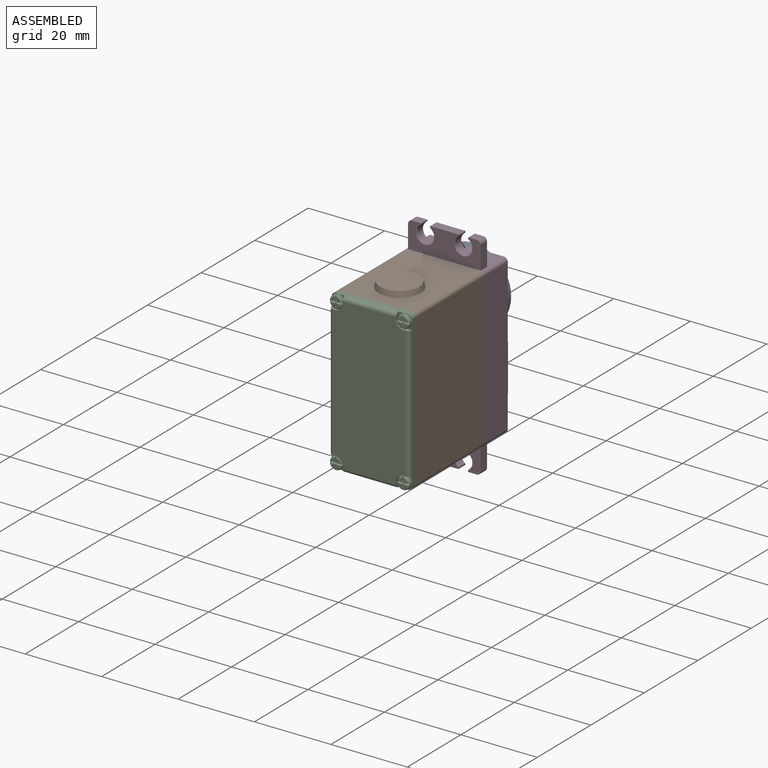
[diagram: assembled view]
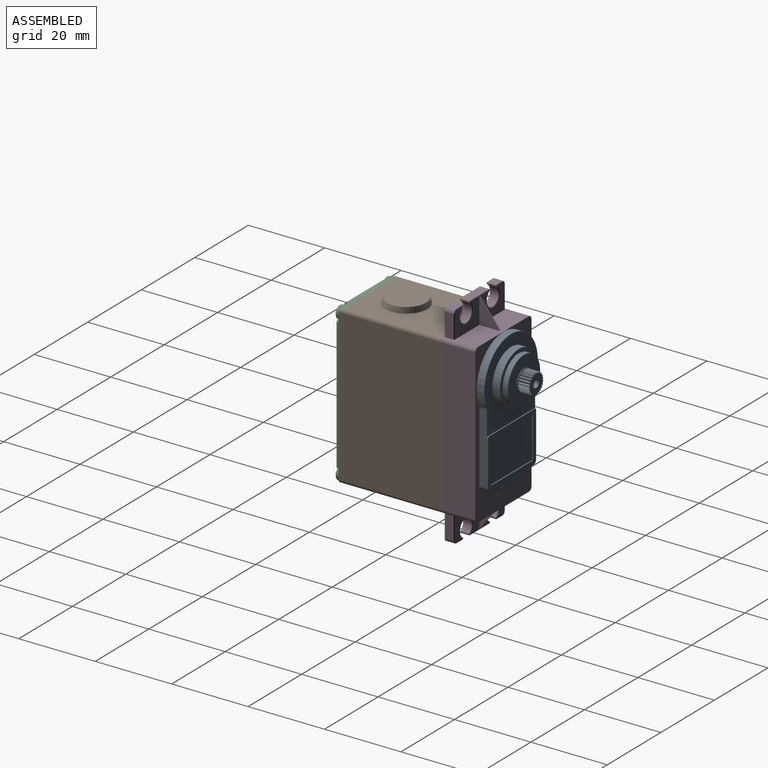
[diagram: assembled view, second angle]
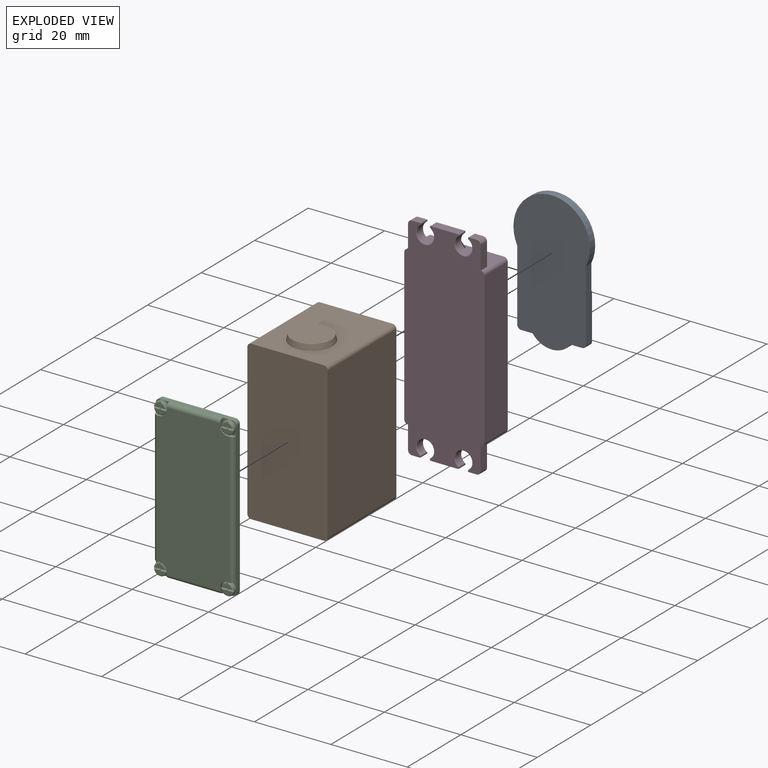
[diagram: exploded view]
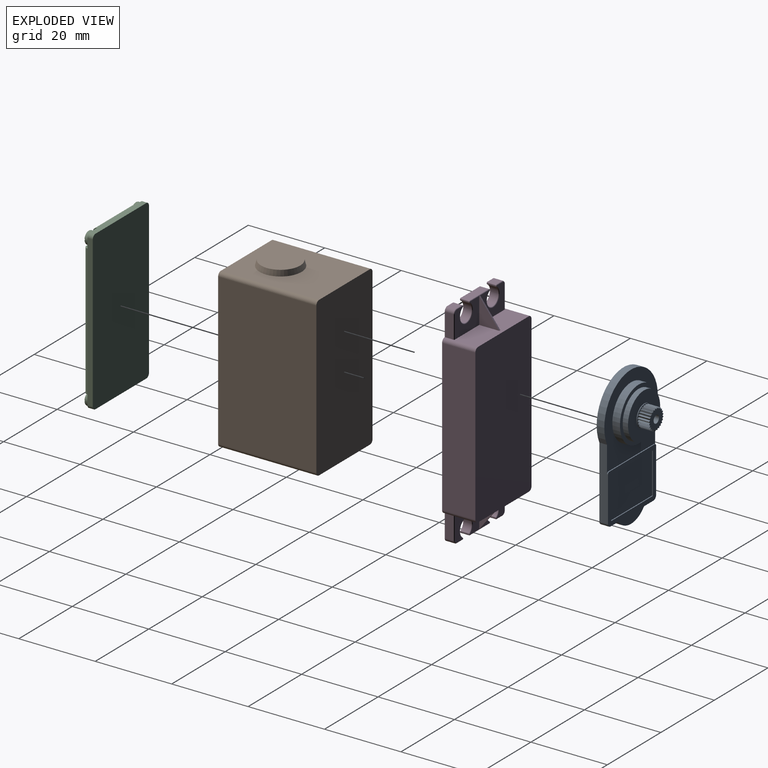
[diagram: exploded view, second angle]
ASSEMBLY  parts=4 mates=3
PART A: 76 faces, bbox 20x8.6x36.5 mm
  f0: plane 12x12mm, normal (0,1,0), area 87.6mm2, adj f22,f23
  f1: plane 14x14mm, normal (0,1,0), area 40.8mm2, adj f21,f22
  f2: plane 21.36x20mm, normal (0,1,0), area 204.6mm2, adj f3,f4,f5,f12,f13,f14,f21
  f3: plane 18.64x2.25mm, normal (-1,0,0), area 40.2mm2, adj f2,f4,f9,f11,f13,f15
  f4: cylinder r=10mm len=20mm, axis (0,-1,0), area 80.9mm2, adj f2,f3,f5,f11
  f5: plane 18.64x2.25mm, normal (1,0,0), area 40.2mm2, adj f2,f4,f6,f11,f12,f15
  f6: cylinder r=1mm len=2.25mm, axis (0,-1,0), area 3.5mm2, adj f5,f8,f11,f15
  f7: cylinder r=6.25mm len=10mm, axis (0,-1,0), area 23.2mm2, adj f8,f10,f11
  f8: plane 16x2.25mm, normal (0,0,-1), area 16mm2, adj f6,f7,f9,f10,f11,f15
  f9: cylinder r=1mm len=2.25mm, axis (0,-1,0), area 3.5mm2, adj f3,f8,f11,f15
  f10: plane 10x2.5mm, normal (0,1,0), area 17.5mm2, adj f7,f8
  f11: plane 36.5x20mm, normal (0,-1,0), area 612mm2, adj f3,f4,f5,f6,f7,f8,f9
  f12: cylinder r=0.5mm len=0.5mm, axis (0,-1,0), area 0.2mm2, adj f2,f5,f14,f15
  f13: cylinder r=0.5mm len=0.5mm, axis (0,-1,0), area 0.2mm2, adj f2,f3,f14,f15
  f14: plane 17x0.25mm, normal (0,0,1), area 4.2mm2, adj f2,f12,f13,f15
  f15: plane 18x13.14mm, normal (0,1,0), area 68.4mm2, adj f3,f5,f6,f8,f9,f12,f13,f14
  f16: plane 10.74x0.25mm, normal (-1,0,0), area 2.7mm2, adj f15,f17,f19,f20
  f17: plane 15.6x0.25mm, normal (0,0,-1), area 3.9mm2, adj f15,f16,f18,f20
  f18: plane 10.74x0.25mm, normal (1,0,0), area 2.7mm2, adj f15,f17,f19,f20
  f19: plane 15.6x0.25mm, normal (0,0,1), area 3.9mm2, adj f15,f16,f18,f20
  f20: plane 15.6x10.74mm, normal (0,1,0), area 167.5mm2, adj f16,f17,f18,f19
  f21: cylinder r=7mm len=14mm, axis (0,-1,0), area 88mm2, adj f1,f2
  f22: cylinder r=6mm len=12mm, axis (0,-1,0), area 52.8mm2, adj f0,f1
  f23: cylinder r=2.85mm len=5.7mm, axis (0,-1,0), area 3.6mm2, adj f0,f24
  f24: plane 5.7x5.7mm, normal (0,1,0), area 5.4mm2, adj f23,f25,f26,f27,f28,f29,f30,f31
  f25: plane 3x0.44mm, normal (-0.87,0,-0.5), area 1.5mm2, adj f24,f26,f72,f73
  f26: plane 3x0.44mm, normal (0.5,0,-0.87), area 1.5mm2, adj f24,f25,f27,f73
  f27: plane 3x0.49mm, normal (-0.97,0,-0.26), area 1.5mm2, adj f24,f26,f28,f73
  f28: plane 3x0.49mm, normal (0.26,0,-0.97), area 1.5mm2, adj f24,f27,f29,f73
  f29: plane 3x0.5mm, normal (-1,0,0), area 1.5mm2, adj f24,f28,f30,f73
  f30: plane 3x0.5mm, normal (0,0,-1), area 1.5mm2, adj f24,f29,f31,f73
  f31: plane 3x0.49mm, normal (-0.97,0,0.26), area 1.5mm2, adj f24,f30,f32,f73
  f32: plane 3x0.49mm, normal (-0.26,0,-0.97), area 1.5mm2, adj f24,f31,f33,f73
  f33: plane 3x0.44mm, normal (-0.87,0,0.5), area 1.5mm2, adj f24,f32,f34,f73
  f34: plane 3x0.44mm, normal (-0.5,0,-0.87), area 1.5mm2, adj f24,f33,f35,f73
  f35: plane 3x0.36mm, normal (-0.71,0,0.71), area 1.5mm2, adj f24,f34,f36,f73
  f36: plane 3x0.36mm, normal (-0.71,0,-0.71), area 1.5mm2, adj f24,f35,f37,f73
  f37: plane 3x0.44mm, normal (-0.5,0,0.87), area 1.5mm2, adj f24,f36,f38,f73
  f38: plane 3x0.44mm, normal (-0.87,0,-0.5), area 1.5mm2, adj f24,f37,f39,f73
  f39: plane 3x0.49mm, normal (-0.26,0,0.97), area 1.5mm2, adj f24,f38,f40,f73
  f40: plane 3x0.49mm, normal (-0.97,0,-0.26), area 1.5mm2, adj f24,f39,f41,f73
  f41: plane 3x0.5mm, normal (0,0,1), area 1.5mm2, adj f24,f40,f42,f73
  f42: plane 3x0.5mm, normal (-1,0,0), area 1.5mm2, adj f24,f41,f43,f73
  f43: plane 3x0.49mm, normal (0.26,0,0.97), area 1.5mm2, adj f24,f42,f44,f73
  f44: plane 3x0.49mm, normal (-0.97,0,0.26), area 1.5mm2, adj f24,f43,f45,f73
  f45: plane 3x0.44mm, normal (0.5,0,0.87), area 1.5mm2, adj f24,f44,f46,f73
  f46: plane 3x0.44mm, normal (-0.87,0,0.5), area 1.5mm2, adj f24,f45,f47,f73
  f47: plane 3x0.36mm, normal (0.71,0,0.71), area 1.5mm2, adj f24,f46,f48,f73
  f48: plane 3x0.36mm, normal (-0.71,0,0.71), area 1.5mm2, adj f24,f47,f49,f73
  f49: plane 3x0.44mm, normal (0.87,0,0.5), area 1.5mm2, adj f24,f48,f50,f73
  f50: plane 3x0.44mm, normal (-0.5,0,0.87), area 1.5mm2, adj f24,f49,f51,f73
  f51: plane 3x0.49mm, normal (0.97,0,0.26), area 1.5mm2, adj f24,f50,f52,f73
  f52: plane 3x0.49mm, normal (-0.26,0,0.97), area 1.5mm2, adj f24,f51,f53,f73
  f53: plane 3x0.5mm, normal (1,0,0), area 1.5mm2, adj f24,f52,f54,f73
  f54: plane 3x0.5mm, normal (0,0,1), area 1.5mm2, adj f24,f53,f55,f73
  f55: plane 3x0.49mm, normal (0.97,0,-0.26), area 1.5mm2, adj f24,f54,f56,f73
  f56: plane 3x0.49mm, normal (0.26,0,0.97), area 1.5mm2, adj f24,f55,f57,f73
  f57: plane 3x0.44mm, normal (0.87,0,-0.5), area 1.5mm2, adj f24,f56,f58,f73
  f58: plane 3x0.44mm, normal (0.5,0,0.87), area 1.5mm2, adj f24,f57,f59,f73
  f59: plane 3x0.36mm, normal (0.71,0,-0.71), area 1.5mm2, adj f24,f58,f60,f73
  f60: plane 3x0.36mm, normal (0.71,0,0.71), area 1.5mm2, adj f24,f59,f61,f73
  f61: plane 3x0.44mm, normal (0.5,0,-0.87), area 1.5mm2, adj f24,f60,f62,f73
  f62: plane 3x0.44mm, normal (0.87,0,0.5), area 1.5mm2, adj f24,f61,f63,f73
  f63: plane 3x0.49mm, normal (0.26,0,-0.97), area 1.5mm2, adj f24,f62,f64,f73
  f64: plane 3x0.49mm, normal (0.97,0,0.26), area 1.5mm2, adj f24,f63,f65,f73
  f65: plane 3x0.5mm, normal (0,0,-1), area 1.5mm2, adj f24,f64,f66,f73
  f66: plane 3x0.5mm, normal (1,0,0), area 1.5mm2, adj f24,f65,f67,f73
  f67: plane 3x0.49mm, normal (-0.26,0,-0.97), area 1.5mm2, adj f24,f66,f68,f73
  f68: plane 3x0.49mm, normal (0.97,0,-0.26), area 1.5mm2, adj f24,f67,f69,f73
  f69: plane 3x0.44mm, normal (-0.5,0,-0.87), area 1.5mm2, adj f24,f68,f70,f73
  f70: plane 3x0.44mm, normal (0.87,0,-0.5), area 1.5mm2, adj f24,f69,f71,f73
  f71: plane 3x0.36mm, normal (-0.71,0,-0.71), area 1.5mm2, adj f24,f70,f72,f73
  f72: plane 3x0.36mm, normal (0.71,0,-0.71), area 1.5mm2, adj f24,f25,f71,f73
  f73: plane 5.41x5.41mm, normal (0,1,0), area 17mm2, adj f25,f26,f27,f28,f29,f30,f31,f32
  f74: cylinder r=1mm len=3mm, axis (0,1,0), area 18.8mm2, adj f73,f75
  f75: plane 2x2mm, normal (0,1,0), area 3.1mm2, adj f74
PART B: 12 faces, bbox 21x25.7x42.9 mm
  f0: plane 25.7x19mm, normal (0,0,1), area 393.3mm2, adj f4,f5,f8,f9,f10
  f1: plane 39.5x25.7mm, normal (-1,0,0), area 1015.1mm2, adj f4,f5,f6,f8
  f2: plane 39.5x25.7mm, normal (1,0,0), area 1015.1mm2, adj f4,f5,f7,f9
  f3: plane 25.7x19mm, normal (0,0,-1), area 488.3mm2, adj f4,f5,f6,f7
  f4: plane 41.5x21mm, normal (0,1,0), area 870.6mm2, adj f0,f1,f2,f3,f6,f7,f8,f9
  f5: plane 41.5x21mm, normal (0,-1,0), area 870.6mm2, adj f0,f1,f2,f3,f6,f7,f8,f9
  f6: cylinder r=1mm len=25.7mm, axis (0,-1,0), area 40.4mm2, adj f1,f3,f4,f5
  f7: cylinder r=1mm len=25.7mm, axis (0,-1,0), area 40.4mm2, adj f2,f3,f4,f5
  f8: cylinder r=1mm len=25.7mm, axis (0,-1,0), area 40.4mm2, adj f0,f1,f4,f5
  f9: cylinder r=1mm len=25.7mm, axis (0,-1,0), area 40.4mm2, adj f0,f2,f4,f5
  f10: cone r=5.5mm half-angle=15deg, axis (0,0,-1), area 48.4mm2, adj f0,f11
  f11: plane 10.25x10.25mm, normal (0,0,1), area 82.5mm2, adj f10
PART C: 102 faces, bbox 21.2x2.4x41.7 mm
  f0: plane 1.03x1.03mm, normal (0,-1,0), area 0.8mm2, adj f3,f83,f84
  f1: plane 1.03x1.03mm, normal (0,-1,0), area 0.8mm2, adj f3,f86,f87
  f2: plane 1.03x1.03mm, normal (0,-1,0), area 0.8mm2, adj f3,f89,f90
  f3: torus R=1.25mm, axis (0,-1,0), area 5.3mm2, adj f0,f1,f2,f80,f81,f82,f83,f84
  f4: plane 39.5x19mm, normal (0,-1,0), area 728.9mm2, adj f24,f25,f26,f41,f42,f43,f59,f60
  f5: plane 19x1.4mm, normal (0,0,1), area 26.6mm2, adj f11,f23,f79,f96,f98,f100
  f6: plane 39.5x1.4mm, normal (1,0,0), area 55.3mm2, adj f22,f23,f79,f97,f98,f99
  f7: plane 1.03x1.03mm, normal (0,-1,0), area 0.8mm2, adj f10,f65,f66
  f8: plane 1.03x1.03mm, normal (0,-1,0), area 0.8mm2, adj f10,f68,f69
  f9: plane 1.03x1.03mm, normal (0,-1,0), area 0.8mm2, adj f10,f74,f75
  f10: torus R=1.25mm, axis (0,-1,0), area 5.3mm2, adj f7,f8,f9,f62,f63,f64,f65,f66
  f11: plane 3.5x3.5mm, normal (0,-1,0), area 2.6mm2, adj f5,f16,f59,f60,f61,f62,f100
  f12: plane 1.03x1.03mm, normal (0,-1,0), area 0.8mm2, adj f15,f48,f49
  f13: plane 1.03x1.03mm, normal (0,-1,0), area 0.8mm2, adj f15,f51,f52
  f14: plane 1.03x1.03mm, normal (0,-1,0), area 0.8mm2, adj f15,f54,f55
  f15: torus R=1.25mm, axis (0,-1,0), area 5.3mm2, adj f12,f13,f14,f45,f46,f47,f48,f49
  f16: plane 39.5x1.4mm, normal (-1,0,0), area 55.3mm2, adj f11,f23,f44,f95,f100,f101
  f17: plane 19x1.4mm, normal (0,0,-1), area 26.6mm2, adj f22,f23,f44,f94,f99,f101
  f18: plane 1.03x1.03mm, normal (0,-1,0), area 0.8mm2, adj f21,f30,f31
  f19: plane 1.03x1.03mm, normal (0,-1,0), area 0.8mm2, adj f21,f33,f34
  f20: plane 1.03x1.03mm, normal (0,-1,0), area 0.8mm2, adj f21,f39,f40
  f21: torus R=1.25mm, axis (0,-1,0), area 5.3mm2, adj f18,f19,f20,f27,f28,f29,f30,f31
  f22: plane 3.5x3.5mm, normal (0,-1,0), area 2.6mm2, adj f6,f17,f24,f25,f26,f27,f99
  f23: plane 41.5x21mm, normal (0,1,0), area 870.6mm2, adj f5,f6,f16,f17,f98,f99,f100,f101
  f24: plane 1.5x1mm, normal (1,0,0), area 1.3mm2, adj f4,f22,f25,f94
  f25: cylinder r=2mm len=2mm, axis (0,-1,0), area 3.1mm2, adj f4,f22,f24,f26
  f26: plane 1.5x1mm, normal (0,0,-1), area 1.3mm2, adj f4,f22,f25,f97
  f27: cylinder r=1.65mm len=3.3mm, axis (0,1,0), area 6.2mm2, adj f21,f22
  f28: plane 1.03x1.03mm, normal (0,-1,0), area 0.8mm2, adj f21,f36,f37
  f29: plane 0.29x0.21mm, normal (0.94,-0.34,0), area 0mm2, adj f21,f30,f40
  f30: plane 1.64x0.57mm, normal (0,-0.34,-0.94), area 0.8mm2, adj f18,f21,f29,f31,f40
  f31: plane 1.64x0.57mm, normal (0.94,-0.34,0), area 0.8mm2, adj f18,f21,f30,f32,f33
  f32: plane 0.28x0.2mm, normal (0,-0.34,-0.94), area 0mm2, adj f21,f31,f33
  f33: plane 1.64x0.57mm, normal (-0.94,-0.34,0), area 0.8mm2, adj f19,f21,f31,f32,f34
  f34: plane 1.64x0.57mm, normal (0,-0.34,-0.94), area 0.8mm2, adj f19,f21,f33,f35,f36
  f35: plane 0.29x0.21mm, normal (-0.94,-0.34,0), area 0mm2, adj f21,f34,f36
  f36: plane 1.64x0.57mm, normal (0,-0.34,0.94), area 0.8mm2, adj f21,f28,f34,f35,f37
  f37: plane 1.64x0.57mm, normal (-0.94,-0.34,0), area 0.8mm2, adj f21,f28,f36,f38,f39
  f38: plane 0.28x0.2mm, normal (0,-0.34,0.94), area 0mm2, adj f21,f37,f39
  f39: plane 1.64x0.57mm, normal (0.94,-0.34,0), area 0.8mm2, adj f20,f21,f37,f38,f40
  f40: plane 1.64x0.57mm, normal (0,-0.34,0.94), area 0.8mm2, adj f20,f21,f29,f30,f39
  f41: plane 1.5x1mm, normal (0,0,-1), area 1.3mm2, adj f4,f42,f44,f95
  f42: cylinder r=2mm len=2mm, axis (0,-1,0), area 3.1mm2, adj f4,f41,f43,f44
  f43: plane 1.5x1mm, normal (-1,0,0), area 1.3mm2, adj f4,f42,f44,f94
  f44: plane 3.5x3.5mm, normal (0,-1,0), area 2.6mm2, adj f16,f17,f41,f42,f43,f45,f101
  f45: cylinder r=1.65mm len=3.3mm, axis (0,1,0), area 6.2mm2, adj f15,f44
  f46: plane 1.03x1.03mm, normal (0,-1,0), area 0.8mm2, adj f15,f57,f58
  f47: plane 0.29x0.21mm, normal (-0.94,-0.34,0), area 0mm2, adj f15,f48,f58
  f48: plane 1.64x0.57mm, normal (0,-0.34,0.94), area 0.8mm2, adj f12,f15,f47,f49,f58
  f49: plane 1.64x0.57mm, normal (-0.94,-0.34,0), area 0.8mm2, adj f12,f15,f48,f50,f51
  f50: plane 0.28x0.2mm, normal (0,-0.34,0.94), area 0mm2, adj f15,f49,f51
  f51: plane 1.64x0.57mm, normal (0.94,-0.34,0), area 0.8mm2, adj f13,f15,f49,f50,f52
  f52: plane 1.64x0.57mm, normal (0,-0.34,0.94), area 0.8mm2, adj f13,f15,f51,f53,f54
  f53: plane 0.29x0.21mm, normal (0.94,-0.34,0), area 0mm2, adj f15,f52,f54
  f54: plane 1.64x0.57mm, normal (0,-0.34,-0.94), area 0.8mm2, adj f14,f15,f52,f53,f55
  f55: plane 1.64x0.57mm, normal (0.94,-0.34,0), area 0.8mm2, adj f14,f15,f54,f56,f57
  f56: plane 0.28x0.2mm, normal (0,-0.34,-0.94), area 0mm2, adj f15,f55,f57
  f57: plane 1.64x0.57mm, normal (-0.94,-0.34,0), area 0.8mm2, adj f15,f46,f55,f56,f58
  f58: plane 1.64x0.57mm, normal (0,-0.34,-0.94), area 0.8mm2, adj f15,f46,f47,f48,f57
  f59: plane 1.5x1mm, normal (-1,0,0), area 1.3mm2, adj f4,f11,f60,f96
  f60: cylinder r=2mm len=2mm, axis (0,-1,0), area 3.1mm2, adj f4,f11,f59,f61
  f61: plane 1.5x1mm, normal (0,0,1), area 1.3mm2, adj f4,f11,f60,f95
  f62: cylinder r=1.65mm len=3.3mm, axis (0,1,0), area 6.2mm2, adj f10,f11
  f63: plane 1.03x1.03mm, normal (0,-1,0), area 0.8mm2, adj f10,f71,f72
  f64: plane 0.29x0.21mm, normal (-0.94,-0.34,0), area 0mm2, adj f10,f65,f75
  f65: plane 1.64x0.57mm, normal (0,-0.34,0.94), area 0.8mm2, adj f7,f10,f64,f66,f75
  f66: plane 1.64x0.57mm, normal (-0.94,-0.34,0), area 0.8mm2, adj f7,f10,f65,f67,f68
  f67: plane 0.28x0.2mm, normal (0,-0.34,0.94), area 0mm2, adj f10,f66,f68
  f68: plane 1.64x0.57mm, normal (0.94,-0.34,0), area 0.8mm2, adj f8,f10,f66,f67,f69
  f69: plane 1.64x0.57mm, normal (0,-0.34,0.94), area 0.8mm2, adj f8,f10,f68,f70,f71
  f70: plane 0.29x0.21mm, normal (0.94,-0.34,0), area 0mm2, adj f10,f69,f71
  f71: plane 1.64x0.57mm, normal (0,-0.34,-0.94), area 0.8mm2, adj f10,f63,f69,f70,f72
  f72: plane 1.64x0.57mm, normal (0.94,-0.34,0), area 0.8mm2, adj f10,f63,f71,f73,f74
  f73: plane 0.28x0.2mm, normal (0,-0.34,-0.94), area 0mm2, adj f10,f72,f74
  f74: plane 1.64x0.57mm, normal (-0.94,-0.34,0), area 0.8mm2, adj f9,f10,f72,f73,f75
  f75: plane 1.64x0.57mm, normal (0,-0.34,-0.94), area 0.8mm2, adj f9,f10,f64,f65,f74
  f76: plane 1.5x1mm, normal (0,0,1), area 1.3mm2, adj f4,f77,f79,f97
  f77: cylinder r=2mm len=2mm, axis (0,-1,0), area 3.1mm2, adj f4,f76,f78,f79
  f78: plane 1.5x1mm, normal (1,0,0), area 1.3mm2, adj f4,f77,f79,f96
  f79: plane 3.5x3.5mm, normal (0,-1,0), area 2.6mm2, adj f5,f6,f76,f77,f78,f80,f98
  f80: cylinder r=1.65mm len=3.3mm, axis (0,1,0), area 6.2mm2, adj f3,f79
  f81: plane 1.03x1.03mm, normal (0,-1,0), area 0.8mm2, adj f3,f92,f93
  f82: plane 0.29x0.21mm, normal (0.94,-0.34,0), area 0mm2, adj f3,f83,f93
  f83: plane 1.64x0.57mm, normal (0,-0.34,-0.94), area 0.8mm2, adj f0,f3,f82,f84,f93
  f84: plane 1.64x0.57mm, normal (0.94,-0.34,0), area 0.8mm2, adj f0,f3,f83,f85,f86
  f85: plane 0.28x0.2mm, normal (0,-0.34,-0.94), area 0mm2, adj f3,f84,f86
  f86: plane 1.64x0.57mm, normal (-0.94,-0.34,0), area 0.8mm2, adj f1,f3,f84,f85,f87
  f87: plane 1.64x0.57mm, normal (0,-0.34,-0.94), area 0.8mm2, adj f1,f3,f86,f88,f89
  f88: plane 0.29x0.21mm, normal (-0.94,-0.34,0), area 0mm2, adj f3,f87,f89
  f89: plane 1.64x0.57mm, normal (0,-0.34,0.94), area 0.8mm2, adj f2,f3,f87,f88,f90
  f90: plane 1.64x0.57mm, normal (-0.94,-0.34,0), area 0.8mm2, adj f2,f3,f89,f91,f92
  f91: plane 0.28x0.2mm, normal (0,-0.34,0.94), area 0mm2, adj f3,f90,f92
  f92: plane 1.64x0.57mm, normal (0.94,-0.34,0), area 0.8mm2, adj f3,f81,f90,f91,f93
  f93: plane 1.64x0.57mm, normal (0,-0.34,0.94), area 0.8mm2, adj f3,f81,f82,f83,f92
  f94: cylinder r=1mm len=14mm, axis (-1,0,0), area 22mm2, adj f4,f17,f24,f43
  f95: cylinder r=1mm len=34.5mm, axis (0,0,1), area 54.2mm2, adj f4,f16,f41,f61
  f96: cylinder r=1mm len=14mm, axis (1,0,0), area 22mm2, adj f4,f5,f59,f78
  f97: cylinder r=1mm len=34.5mm, axis (0,0,-1), area 54.2mm2, adj f4,f6,f26,f76
  f98: cylinder r=1mm len=1.4mm, axis (0,-1,0), area 2.2mm2, adj f5,f6,f23,f79
  f99: cylinder r=1mm len=1.4mm, axis (0,-1,0), area 2.2mm2, adj f6,f17,f22,f23
  f100: cylinder r=1mm len=1.4mm, axis (0,-1,0), area 2.2mm2, adj f5,f11,f16,f23
  f101: cylinder r=1mm len=1.4mm, axis (0,-1,0), area 2.2mm2, adj f16,f17,f23,f44
PART D: 84 faces, bbox 21x8.7x55.7 mm
  f0: plane 9.1x6.8mm, normal (0,1,0), area 43.2mm2, adj f5,f55,f56,f63,f64,f65,f72,f77
  f1: plane 2.3x2.1mm, normal (0,0,1), area 4.8mm2, adj f2,f60,f66,f67
  f2: plane 55.5x21mm, normal (0,-1,0), area 1059.8mm2, adj f1,f4,f7,f8,f9,f10,f13,f14
  f3: plane 9.1x6.8mm, normal (0,1,0), area 43.2mm2, adj f5,f58,f59,f67,f68,f69,f72,f73
  f4: plane 7.2x2.3mm, normal (0,0,1), area 16.6mm2, adj f2,f70,f71,f72
  f5: plane 19x6.4mm, normal (0,0,1), area 115.7mm2, adj f0,f3,f12,f13,f15,f65,f69,f81
  f6: plane 9.1x6.8mm, normal (0,1,0), area 43.2mm2, adj f11,f21,f22,f30,f31,f32,f39,f44
  f7: plane 7.2x2.3mm, normal (0,0,-1), area 16.6mm2, adj f2,f37,f38,f39
  f8: plane 2.3x2.1mm, normal (0,0,-1), area 4.8mm2, adj f2,f28,f29,f30
  f9: plane 39.5x8.7mm, normal (-1,0,0), area 343.6mm2, adj f2,f12,f13,f14
  f10: plane 39.5x8.7mm, normal (1,0,0), area 343.6mm2, adj f2,f12,f15,f16
  f11: plane 19x6.4mm, normal (0,0,-1), area 115.7mm2, adj f6,f12,f14,f16,f18,f32,f36,f48
  f12: plane 41.5x21mm, normal (0,1,0), area 870.6mm2, adj f5,f9,f10,f11,f13,f14,f15,f16
  f13: cylinder r=1mm len=8.7mm, axis (0,-1,0), area 13.7mm2, adj f2,f5,f9,f12,f52
  f14: cylinder r=1mm len=8.7mm, axis (0,-1,0), area 13.7mm2, adj f2,f9,f11,f12,f17
  f15: cylinder r=1mm len=8.7mm, axis (0,-1,0), area 13.7mm2, adj f2,f5,f10,f12,f51
  f16: cylinder r=1mm len=8.7mm, axis (0,-1,0), area 13.7mm2, adj f2,f10,f11,f12,f19
  f17: plane 6x2.3mm, normal (-1,0,0), area 13.8mm2, adj f2,f14,f28,f32
  f18: plane 9.1x6.8mm, normal (0,1,0), area 43.2mm2, adj f11,f25,f26,f34,f35,f36,f39,f40
  f19: plane 6x2.3mm, normal (1,0,0), area 13.8mm2, adj f2,f16,f27,f36
  f20: plane 2.3x2.1mm, normal (0,0,-1), area 4.8mm2, adj f2,f27,f33,f34
  f21: plane 2.5x0.19mm, normal (-1,0,0), area 0.5mm2, adj f2,f6,f38,f44,f45,f47
  f22: plane 2.5x0.19mm, normal (1,0,0), area 0.5mm2, adj f2,f6,f29,f44,f46,f47
  f23: cylinder r=2.25mm len=4.5mm, axis (0,-1,0), area 23.9mm2, adj f44,f45,f46,f47
  f24: cylinder r=2.25mm len=4.5mm, axis (0,-1,0), area 23.9mm2, adj f40,f41,f42,f43
  f25: plane 2.5x0.19mm, normal (-1,0,0), area 0.5mm2, adj f2,f18,f33,f40,f42,f43
  f26: plane 2.5x0.19mm, normal (1,0,0), area 0.5mm2, adj f2,f18,f37,f40,f41,f43
  f27: cylinder r=1mm len=2.3mm, axis (0,1,0), area 3.6mm2, adj f2,f19,f20,f35
  f28: cylinder r=1mm len=2.3mm, axis (0,-1,0), area 3.6mm2, adj f2,f8,f17,f31
  f29: cylinder r=0.2mm len=2.5mm, axis (0,-1,0), area 0.8mm2, adj f2,f8,f22,f30
  f30: cylinder r=0.2mm len=2.3mm, axis (-1,0,0), area 0.7mm2, adj f6,f8,f29,f31
  f31: torus R=0.8mm, axis (0,1,0), area 0.5mm2, adj f6,f28,f30,f32
  f32: cylinder r=0.2mm len=6mm, axis (0,0,-1), area 1.9mm2, adj f6,f11,f17,f31
  f33: cylinder r=0.2mm len=2.5mm, axis (0,1,0), area 0.8mm2, adj f2,f20,f25,f34
  f34: cylinder r=0.2mm len=2.3mm, axis (-1,0,0), area 0.7mm2, adj f18,f20,f33,f35
  f35: torus R=0.8mm, axis (0,1,0), area 0.5mm2, adj f18,f27,f34,f36
  f36: cylinder r=0.2mm len=6mm, axis (0,0,-1), area 1.9mm2, adj f11,f18,f19,f35
  f37: cylinder r=0.2mm len=2.5mm, axis (0,-1,0), area 0.8mm2, adj f2,f7,f26,f39
  f38: cylinder r=0.2mm len=2.5mm, axis (0,1,0), area 0.8mm2, adj f2,f7,f21,f39
  f39: cylinder r=0.2mm len=7.6mm, axis (-1,0,0), area 2.3mm2, adj f6,f7,f18,f37,f38,f48
  f40: torus R=2.45mm, axis (0,1,0), area 3.8mm2, adj f18,f24,f25,f26,f41,f42
  f41: cylinder r=0.2mm len=2.44mm, axis (0,-1,0), area 0.4mm2, adj f24,f26,f40,f43
  f42: cylinder r=0.2mm len=2.44mm, axis (0,-1,0), area 0.4mm2, adj f24,f25,f40,f43
  f43: torus R=2.45mm, axis (0,1,0), area 3.8mm2, adj f2,f24,f25,f26,f41,f42
  f44: torus R=2.45mm, axis (0,1,0), area 3.8mm2, adj f6,f21,f22,f23,f45,f46
  f45: cylinder r=0.2mm len=2.44mm, axis (0,-1,0), area 0.4mm2, adj f21,f23,f44,f47
  f46: cylinder r=0.2mm len=2.44mm, axis (0,-1,0), area 0.4mm2, adj f22,f23,f44,f47
  f47: torus R=2.45mm, axis (0,1,0), area 3.8mm2, adj f2,f21,f22,f23,f45,f46
  f48: plane 6.8x5.26mm, normal (0,0.79,-0.61), area 3.4mm2, adj f11,f39,f49,f50
  f49: plane 6.8x5.26mm, normal (1,0,0), area 17.9mm2, adj f11,f18,f48
  f50: plane 6.8x5.26mm, normal (-1,0,0), area 17.9mm2, adj f6,f11,f48
  f51: plane 6x2.3mm, normal (1,0,0), area 13.8mm2, adj f2,f15,f60,f69
  f52: plane 6x2.3mm, normal (-1,0,0), area 13.8mm2, adj f2,f13,f61,f65
  f53: plane 2.3x2.1mm, normal (0,0,1), area 4.8mm2, adj f2,f61,f62,f63
  f54: cylinder r=2.25mm len=4.5mm, axis (0,-1,0), area 23.9mm2, adj f77,f78,f79,f80
  f55: plane 2.5x0.19mm, normal (-1,0,0), area 0.5mm2, adj f0,f2,f71,f77,f78,f80
  f56: plane 2.5x0.19mm, normal (1,0,0), area 0.5mm2, adj f0,f2,f62,f77,f79,f80
  f57: cylinder r=2.25mm len=4.5mm, axis (0,-1,0), area 23.9mm2, adj f73,f74,f75,f76
  f58: plane 2.5x0.19mm, normal (1,0,0), area 0.5mm2, adj f2,f3,f70,f73,f74,f76
  f59: plane 2.5x0.19mm, normal (-1,0,0), area 0.5mm2, adj f2,f3,f66,f73,f75,f76
  f60: cylinder r=1mm len=2.3mm, axis (0,-1,0), area 3.6mm2, adj f1,f2,f51,f68
  f61: cylinder r=1mm len=2.3mm, axis (0,1,0), area 3.6mm2, adj f2,f52,f53,f64
  f62: cylinder r=0.2mm len=2.5mm, axis (0,1,0), area 0.8mm2, adj f2,f53,f56,f63
  f63: cylinder r=0.2mm len=2.3mm, axis (1,0,0), area 0.7mm2, adj f0,f53,f62,f64
  f64: torus R=0.8mm, axis (0,-1,0), area 0.5mm2, adj f0,f61,f63,f65
  f65: cylinder r=0.2mm len=6mm, axis (0,0,1), area 1.9mm2, adj f0,f5,f52,f64
  f66: cylinder r=0.2mm len=2.5mm, axis (0,-1,0), area 0.8mm2, adj f1,f2,f59,f67
  f67: cylinder r=0.2mm len=2.3mm, axis (1,0,0), area 0.7mm2, adj f1,f3,f66,f68
  f68: torus R=0.8mm, axis (0,-1,0), area 0.5mm2, adj f3,f60,f67,f69
  f69: cylinder r=0.2mm len=6mm, axis (0,0,1), area 1.9mm2, adj f3,f5,f51,f68
  f70: cylinder r=0.2mm len=2.5mm, axis (0,1,0), area 0.8mm2, adj f2,f4,f58,f72
  f71: cylinder r=0.2mm len=2.5mm, axis (0,-1,0), area 0.8mm2, adj f2,f4,f55,f72
  f72: cylinder r=0.2mm len=7.6mm, axis (1,0,0), area 2.3mm2, adj f0,f3,f4,f70,f71,f81
  f73: torus R=2.45mm, axis (0,-1,0), area 3.8mm2, adj f3,f57,f58,f59,f74,f75
  f74: cylinder r=0.2mm len=2.44mm, axis (0,-1,0), area 0.4mm2, adj f57,f58,f73,f76
  f75: cylinder r=0.2mm len=2.44mm, axis (0,-1,0), area 0.4mm2, adj f57,f59,f73,f76
  f76: torus R=2.45mm, axis (0,1,0), area 3.8mm2, adj f2,f57,f58,f59,f74,f75
  f77: torus R=2.45mm, axis (0,-1,0), area 3.8mm2, adj f0,f54,f55,f56,f78,f79
  f78: cylinder r=0.2mm len=2.44mm, axis (0,-1,0), area 0.4mm2, adj f54,f55,f77,f80
  f79: cylinder r=0.2mm len=2.44mm, axis (0,-1,0), area 0.4mm2, adj f54,f56,f77,f80
  f80: torus R=2.45mm, axis (0,1,0), area 3.8mm2, adj f2,f54,f55,f56,f78,f79
  f81: plane 6.8x5.26mm, normal (0,0.79,0.61), area 3.4mm2, adj f5,f72,f82,f83
  f82: plane 6.8x5.26mm, normal (1,0,0), area 17.9mm2, adj f3,f5,f81
  f83: plane 6.8x5.26mm, normal (-1,0,0), area 17.9mm2, adj f0,f5,f81
PLACE A t=(0,36.8,-0.23)mm
PLACE B t=(0,2.4,0)mm
PLACE C at identity fixed
PLACE D t=(3.92,28.1,-6.25)mm
MATE fastened D.f2 <-> B.f4  axis (0,-1,0) through (0,28.1,0)mm
MATE fastened B.f5 <-> C.f23  axis (0,-1,0) through (0,2.4,0)mm
MATE fastened D.f12 <-> A.f4  axis (0,1,0) through (0,36.8,10.72)mm
